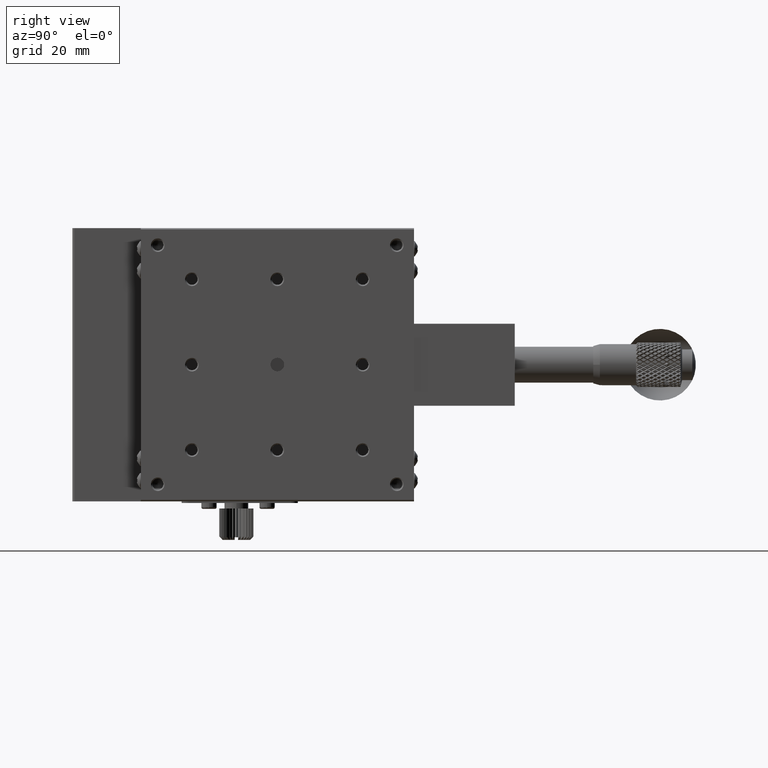
[diagram: clean part render]
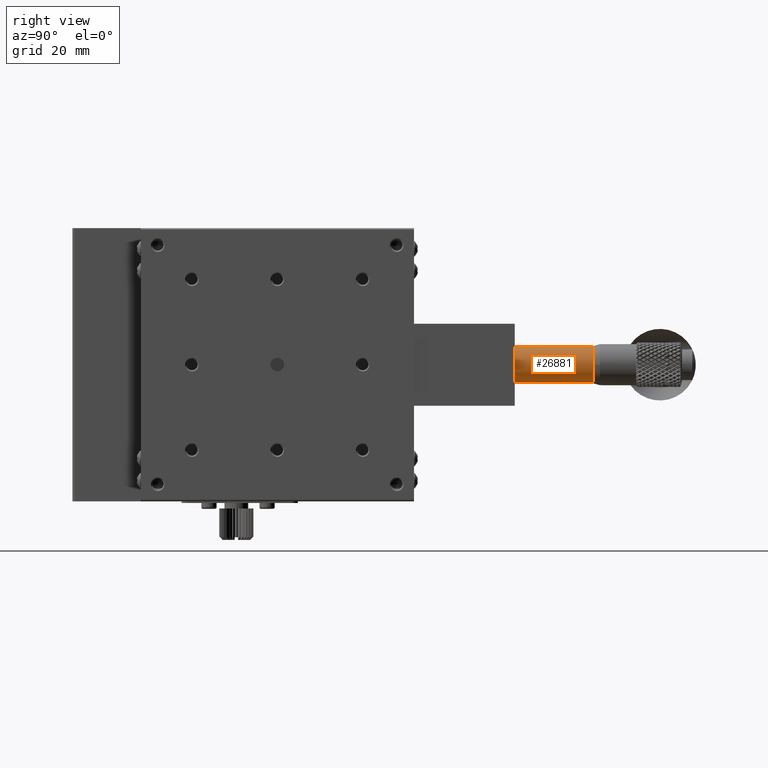
[diagram: same view with one face highlighted and labeled with its STEP entity id]
A machine part, right view. The second image highlights one B-rep face of the part: STEP entity #26881.
In plain terms, the highlighted cylindrical surface (bore or boss wall) has radius 5.25 mm, axis along (0, 1, 0).
Its self-contained STEP definition (entity closure, byte-faithful):
#3671 = EDGE_CURVE ( 'NONE', #51600, #51600, #63688, .T. ) ;
#3849 = CYLINDRICAL_SURFACE ( 'NONE', #59288, 5.249999999999997335 ) ;
#11459 = CIRCLE ( 'NONE', #51210, 5.249999999999997335 ) ;
#16110 = DIRECTION ( 'NONE',  ( 0.000000000000000000, 0.000000000000000000, 1.000000000000000000 ) ) ;
#16838 = AXIS2_PLACEMENT_3D ( 'NONE', #101763, #27995, #37728 ) ;
#18472 = DIRECTION ( 'NONE',  ( 0.000000000000000000, 1.000000000000000000, 0.000000000000000000 ) ) ;
#26881 = ADVANCED_FACE ( 'NONE', ( #28720, #100920 ), #3849, .T. ) ;
#27995 = DIRECTION ( 'NONE',  ( -0.000000000000000000, -1.000000000000000000, -0.000000000000000000 ) ) ;
#28720 = FACE_OUTER_BOUND ( 'NONE', #77805, .T. ) ;
#30199 = CARTESIAN_POINT ( 'NONE',  ( 4.500000000000000888, 129.5000000000000000, -40.00000000000000000 ) ) ;
#31270 = DIRECTION ( 'NONE',  ( -0.000000000000000000, -1.000000000000000000, -0.000000000000000000 ) ) ;
#37728 = DIRECTION ( 'NONE',  ( 0.000000000000000000, 0.000000000000000000, 1.000000000000000000 ) ) ;
#50993 = CARTESIAN_POINT ( 'NONE',  ( 4.500000000000000888, 152.5000000000000000, -40.00000000000000000 ) ) ;
#51210 = AXIS2_PLACEMENT_3D ( 'NONE', #30199, #31270, #16110 ) ;
#51600 = VERTEX_POINT ( 'NONE', #84695 ) ;
#53600 = ORIENTED_EDGE ( 'NONE', *, *, #67710, .F. ) ;
#56062 = EDGE_LOOP ( 'NONE', ( #53600 ) ) ;
#58460 = ORIENTED_EDGE ( 'NONE', *, *, #3671, .T. ) ;
#59288 = AXIS2_PLACEMENT_3D ( 'NONE', #50993, #18472, #76515 ) ;
#63688 = CIRCLE ( 'NONE', #16838, 5.249999999999997335 ) ;
#65717 = VERTEX_POINT ( 'NONE', #98741 ) ;
#67710 = EDGE_CURVE ( 'NONE', #65717, #65717, #11459, .T. ) ;
#76515 = DIRECTION ( 'NONE',  ( 0.000000000000000000, 0.000000000000000000, 1.000000000000000000 ) ) ;
#77805 = EDGE_LOOP ( 'NONE', ( #58460 ) ) ;
#84695 = CARTESIAN_POINT ( 'NONE',  ( 4.500000000000000888, 152.5000000000000000, -34.75000000000000000 ) ) ;
#98741 = CARTESIAN_POINT ( 'NONE',  ( 4.500000000000000888, 129.5000000000000000, -34.75000000000000000 ) ) ;
#100920 = FACE_OUTER_BOUND ( 'NONE', #56062, .T. ) ;
#101763 = CARTESIAN_POINT ( 'NONE',  ( 4.500000000000000888, 152.5000000000000000, -40.00000000000000000 ) ) ;